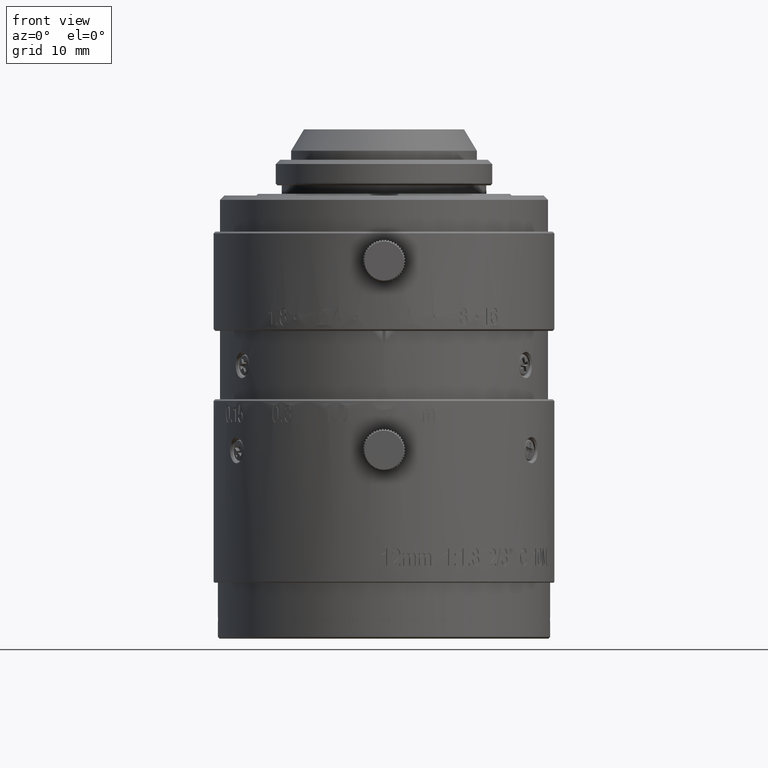
[diagram: clean part render]
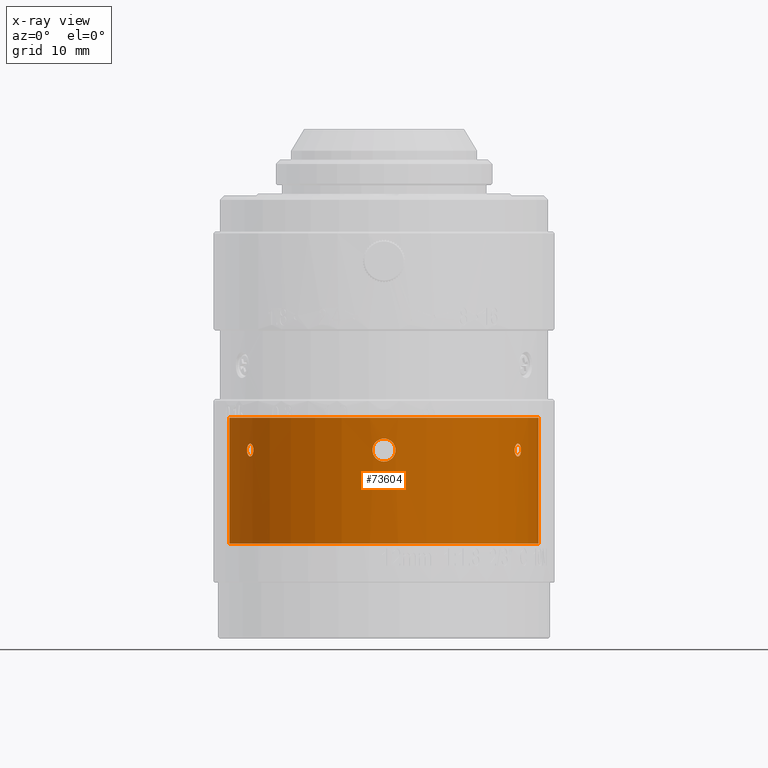
[diagram: x-ray — body ghosted, one internal face saturated and labeled with its STEP entity id]
A machine part, front view, then the same camera in x-ray: the body is ghosted and one INTERNAL B-rep face — a face not visible from any outside direction — is saturated and labeled: STEP entity #73604.
In plain terms, the highlighted cylindrical surface (partial cylindrical patch) has radius 18.15 mm, axis along (0, 0, -1).
Its self-contained STEP definition (entity closure, byte-faithful):
#185 = CARTESIAN_POINT ( 'NONE',  ( -16.07993552994999931, -8.417729702983999474, 21.50000000000000000 ) ) ;
#941 = CARTESIAN_POINT ( 'NONE',  ( 16.07546107106943367, -8.426768878587090228, 21.34322895665319919 ) ) ;
#1050 = EDGE_CURVE ( 'NONE', #11276, #30883, #27365, .T. ) ;
#1358 = CARTESIAN_POINT ( 'NONE',  ( 15.49684218341546860, -9.448263345174392924, 20.88582774878867454 ) ) ;
#1452 = EDGE_CURVE ( 'NONE', #40327, #26811, #4677, .T. ) ;
#1692 = CARTESIAN_POINT ( 'NONE',  ( 16.04452536865095880, -8.485636915649784839, 21.84463499550212973 ) ) ;
#2261 = CARTESIAN_POINT ( 'NONE',  ( -16.07993552994999931, -8.417729702983999474, 21.50000000000000000 ) ) ;
#2565 = CARTESIAN_POINT ( 'NONE',  ( 15.33552610649948278, -9.708400415507561831, 21.34242650353464654 ) ) ;
#2636 = B_SPLINE_CURVE_WITH_KNOTS ( 'NONE', 3,
 ( #33633, #72667, #9546, #20785, #34854, #40263, #72241, #15338, #58571, #8726, #9137, #58971, #46103, #40681, #33241, #27410, #1692, #2905, #52730, #34042 ),
 .UNSPECIFIED., .F., .F.,
 ( 4, 2, 2, 2, 2, 2, 2, 2, 2, 4 ),
 ( 0.000000000000000000, 0.1250000000000019151, 0.2500000000000038303, 0.3750000000000057732, 0.5000000000000065503, 0.6250000000000074385, 0.6875000000000062172, 0.7500000000000048850, 0.8750000000000025535, 1.000000000000000000 ),
 .UNSPECIFIED. ) ;
#2847 = CARTESIAN_POINT ( 'NONE',  ( -1.350033151885859484, -18.09972128210655740, 21.32110436927158403 ) ) ;
#2905 = CARTESIAN_POINT ( 'NONE',  ( 16.07548529208680321, -8.426755626285210354, 21.65753705151938746 ) ) ;
#3006 = CARTESIAN_POINT ( 'NONE',  ( -0.0001679660669294999714, -18.14999877328999744, 20.15000418049000075 ) ) ;
#3533 = AXIS2_PLACEMENT_3D ( 'NONE', #41690, #67850, #28811 ) ;
#3636 = CARTESIAN_POINT ( 'NONE',  ( -15.49192312625401513, -9.456770650410241785, 20.88276933573381200 ) ) ;
#3951 = DIRECTION ( 'NONE',  ( 0.000000000000000000, 0.000000000000000000, 1.000000000000000000 ) ) ;
#4201 = ORIENTED_EDGE ( 'NONE', *, *, #8140, .T. ) ;
#4677 = CIRCLE ( 'NONE', #55040, 18.14999999999999858 ) ;
#5348 = CARTESIAN_POINT ( 'NONE',  ( -15.75676336138097078, -9.008446410541139926, 22.24952519338572188 ) ) ;
#5749 = CARTESIAN_POINT ( 'NONE',  ( -15.40132685778221067, -9.603632262560122257, 21.94587936257468996 ) ) ;
#6645 = ORIENTED_EDGE ( 'NONE', *, *, #1452, .T. ) ;
#7793 = ORIENTED_EDGE ( 'NONE', *, *, #72916, .F. ) ;
#7979 = CARTESIAN_POINT ( 'NONE',  ( 15.40139457868785300, -9.603523261377478804, 21.05391078501916269 ) ) ;
#8140 = EDGE_CURVE ( 'NONE', #14824, #78813, #18174, .T. ) ;
#8726 = CARTESIAN_POINT ( 'NONE',  ( 15.75201268017929479, -9.016750080168094428, 22.25044430014061803 ) ) ;
#9077 = CARTESIAN_POINT ( 'NONE',  ( -0.6815869709322600611, -18.13795115647463163, 20.32107369288214116 ) ) ;
#9137 = CARTESIAN_POINT ( 'NONE',  ( 15.79434426338546871, -8.942179378865768413, 22.24071854086744437 ) ) ;
#9452 = CARTESIAN_POINT ( 'NONE',  ( -15.54313637960086147, -9.371935875028675866, 20.82685281712102920 ) ) ;
#9546 = CARTESIAN_POINT ( 'NONE',  ( 15.33552030368315755, -9.708383446122802241, 21.65680238853092732 ) ) ;
#10431 = CARTESIAN_POINT ( 'NONE',  ( 15.32993552994999931, -9.716767808661000316, 21.50000000000000000 ) ) ;
#11219 = CARTESIAN_POINT ( 'NONE',  ( 16.07993394641999885, -8.417736048711001118, 21.50000000956999813 ) ) ;
#11276 = VERTEX_POINT ( 'NONE', #43349 ) ;
#11962 = CARTESIAN_POINT ( 'NONE',  ( -15.47276343133398235, -9.487786181109877148, 22.07954346143578306 ) ) ;
#12154 = CARTESIAN_POINT ( 'NONE',  ( -15.32994023375000125, -9.716763264418000645, 21.50000000956999813 ) ) ;
#12943 = ORIENTED_EDGE ( 'NONE', *, *, #1050, .T. ) ;
#13793 = CARTESIAN_POINT ( 'NONE',  ( 15.79844179987972197, -8.934924650174158600, 20.76111068628036804 ) ) ;
#14824 = VERTEX_POINT ( 'NONE', #50830 ) ;
#15338 = CARTESIAN_POINT ( 'NONE',  ( 15.63764707511896823, -9.213449232464116179, 22.23914147258656726 ) ) ;
#15418 = CARTESIAN_POINT ( 'NONE',  ( -16.04512367667176775, -8.484469348152662960, 21.84169934391808710 ) ) ;
#16348 = FACE_BOUND ( 'NONE', #20112, .T. ) ;
#17019 = LINE ( 'NONE', #27850, #47640 ) ;
#17163 = FACE_OUTER_BOUND ( 'NONE', #27797, .T. ) ;
#17498 = CARTESIAN_POINT ( 'NONE',  ( 0.8282817536625699528, -18.13153381477859227, 22.58099969242854854 ) ) ;
#18174 = CIRCLE ( 'NONE', #48544, 18.14999999999999858 ) ;
#20112 = EDGE_LOOP ( 'NONE', ( #60265, #75806 ) ) ;
#20359 = B_SPLINE_CURVE_WITH_KNOTS ( 'NONE', 3,
 ( #39533, #77316, #941, #26249, #76918, #45358, #70693, #13793, #20432, #39124, #64878, #64473, #32906, #1358, #26666, #7979, #54434, #2565, #35329, #10431 ),
 .UNSPECIFIED., .F., .F.,
 ( 4, 2, 2, 2, 2, 2, 2, 2, 2, 4 ),
 ( 0.000000000000000000, 0.1249999999999988898, 0.2499999999999977796, 0.3749999999999966693, 0.4999999999999955591, 0.6249999999999944489, 0.6874999999999944489, 0.7499999999999944489, 0.8749999999999972244, 1.000000000000000000 ),
 .UNSPECIFIED. ) ;
#20432 = CARTESIAN_POINT ( 'NONE',  ( 15.75764150059447211, -9.006913141079028406, 20.75063292850706631 ) ) ;
#20785 = CARTESIAN_POINT ( 'NONE',  ( 15.37032783142243453, -9.653250036858119998, 21.84169934374101629 ) ) ;
#21162 = EDGE_CURVE ( 'NONE', #40327, #78813, #67072, .T. ) ;
#21289 = CARTESIAN_POINT ( 'NONE',  ( 0.000000000000000000, 0.000000000000000000, 10.50000000000000000 ) ) ;
#21485 = CARTESIAN_POINT ( 'NONE',  ( -15.39972983293267994, -9.606168127322217032, 21.05907901222671796 ) ) ;
#21498 = CARTESIAN_POINT ( 'NONE',  ( 15.32993552994999931, -9.716767808661000316, 21.50000000000000000 ) ) ;
#21918 = CARTESIAN_POINT ( 'NONE',  ( -1.081235073472156971, -18.11821020954863215, 22.32797450440416043 ) ) ;
#22496 = CARTESIAN_POINT ( 'NONE',  ( 1.315662486747798843, -18.10238221541788306, 21.14859728901706859 ) ) ;
#22710 = CARTESIAN_POINT ( 'NONE',  ( -15.63709262797349808, -9.214389613665293410, 20.76111068624337719 ) ) ;
#22743 = CARTESIAN_POINT ( 'NONE',  ( -1.315768007217758662, -18.10237458692740375, 21.14895404654836497 ) ) ;
#22895 = EDGE_CURVE ( 'NONE', #26811, #14824, #17019, .T. ) ;
#23100 = CARTESIAN_POINT ( 'NONE',  ( -16.07993552995102604, -8.417729702982224893, 21.42858785493296381 ) ) ;
#23173 = CARTESIAN_POINT ( 'NONE',  ( -15.32993709054182041, -9.716768708614251793, 21.57140889202615952 ) ) ;
#23742 = DIRECTION ( 'NONE',  ( 0.000000000000000000, 0.000000000000000000, 1.000000000000000000 ) ) ;
#23999 = CARTESIAN_POINT ( 'NONE',  ( -15.64132663898977071, -9.207213678771360321, 22.24071854086779254 ) ) ;
#24126 = CARTESIAN_POINT ( 'NONE',  ( 1.349916277869258607, -18.09972999935995475, 21.32133131164567885 ) ) ;
#26249 = CARTESIAN_POINT ( 'NONE',  ( 16.04517945403074819, -8.484360507885391200, 21.15858222375180020 ) ) ;
#26666 = CARTESIAN_POINT ( 'NONE',  ( 15.47292768126146001, -9.487518910140199324, 20.92019052932448275 ) ) ;
#26811 = VERTEX_POINT ( 'NONE', #70808 ) ;
#27365 = B_SPLINE_CURVE_WITH_KNOTS ( 'NONE', 3,
 ( #80040, #78410, #48486, #46849, #72188, #21918, #67201, #65970, #79644, #2847, #22743, #41855, #47260, #72606, #9077, #50540, #43067, #68410 ),
 .UNSPECIFIED., .F., .F.,
 ( 4, 2, 2, 2, 2, 2, 2, 2, 4 ),
 ( 0.000000000000000000, 0.1250000000000000278, 0.2500000000000000000, 0.3749999999999999445, 0.4999999999999999445, 0.6249999999999998890, 0.7499999999999998890, 0.8750000000000000000, 1.000000000000000000 ),
 .UNSPECIFIED. ) ;
#27410 = CARTESIAN_POINT ( 'NONE',  ( 16.01765293690055003, -8.536124179495841346, 21.94587936251943106 ) ) ;
#27797 = EDGE_LOOP ( 'NONE', ( #76166, #4201, #33825, #6645 ) ) ;
#27850 = CARTESIAN_POINT ( 'NONE',  ( -18.14999999999999858, 0.000000000000000000, 10.50000000000000000 ) ) ;
#28320 = CARTESIAN_POINT ( 'NONE',  ( 0.1786886605782281590, -18.15000165442092950, 20.14998192720859294 ) ) ;
#28462 = EDGE_CURVE ( 'NONE', #51237, #76163, #2636, .T. ) ;
#28811 = DIRECTION ( 'NONE',  ( -1.000000000000000000, 0.000000000000000000, 0.000000000000000000 ) ) ;
#29140 = CARTESIAN_POINT ( 'NONE',  ( 1.080995884949722541, -18.11822416197846408, 20.67170561437750109 ) ) ;
#29216 = B_SPLINE_CURVE_WITH_KNOTS ( 'NONE', 3,
 ( #3006, #28320, #67370, #81032, #36182, #29140, #48247, #22496, #24126, #29559, #55695, #49469, #74806, #17498, #49069, #54471, #42825, #61515 ),
 .UNSPECIFIED., .F., .F.,
 ( 4, 2, 2, 2, 2, 2, 2, 2, 4 ),
 ( 0.000000000000000000, 0.1250000000000000000, 0.2500000000000000000, 0.3750000000000000000, 0.5000000000000000000, 0.6250000000000000000, 0.7500000000000000000, 0.8750000000000000000, 1.000000000000000000 ),
 .UNSPECIFIED. ) ;
#29559 = CARTESIAN_POINT ( 'NONE',  ( 1.350082991285791012, -18.09971756474746840, 21.67851398656761575 ) ) ;
#30883 = VERTEX_POINT ( 'NONE', #43268 ) ;
#30902 = CARTESIAN_POINT ( 'NONE',  ( -16.01759239948228952, -8.536237328246414791, 21.05391078491549806 ) ) ;
#32906 = CARTESIAN_POINT ( 'NONE',  ( 15.54603507385754746, -9.366886646483493450, 20.82866300851624075 ) ) ;
#32947 = DIRECTION ( 'NONE',  ( 0.000000000000000000, 0.000000000000000000, -1.000000000000000000 ) ) ;
#33241 = CARTESIAN_POINT ( 'NONE',  ( 15.95304557417626512, -8.655913107740186518, 22.07954346145520574 ) ) ;
#33557 = EDGE_CURVE ( 'NONE', #44479, #76084, #36648, .T. ) ;
#33633 = CARTESIAN_POINT ( 'NONE',  ( 15.32993552994999931, -9.716767808661000316, 21.50000000000000000 ) ) ;
#33825 = ORIENTED_EDGE ( 'NONE', *, *, #21162, .F. ) ;
#34042 = CARTESIAN_POINT ( 'NONE',  ( 16.07993394641999885, -8.417736048711001118, 21.50000000956999813 ) ) ;
#34354 = CARTESIAN_POINT ( 'NONE',  ( -15.32994023375000125, -9.716763264418000645, 21.50000000956999813 ) ) ;
#34532 = CARTESIAN_POINT ( 'NONE',  ( -16.01881651909211968, -8.533913264370889706, 21.94161866776416758 ) ) ;
#34759 = CARTESIAN_POINT ( 'NONE',  ( -15.67903634015507741, -9.143061272689939400, 20.75063292850875740 ) ) ;
#34854 = CARTESIAN_POINT ( 'NONE',  ( 15.39999394005787892, -9.605745412115330950, 21.94161866752021695 ) ) ;
#35329 = CARTESIAN_POINT ( 'NONE',  ( 15.32993552995117170, -9.716767808658968164, 21.42858785506550134 ) ) ;
#35495 = CARTESIAN_POINT ( 'NONE',  ( 18.14999999999999858, 0.000000000000000000, 10.50000000000000000 ) ) ;
#36063 = CARTESIAN_POINT ( 'NONE',  ( -15.32994023375000125, -9.716763264418000645, 21.50000000956999813 ) ) ;
#36182 = CARTESIAN_POINT ( 'NONE',  ( 0.8275841051198771225, -18.13156649150677779, 20.41849859399250633 ) ) ;
#36458 = CARTESIAN_POINT ( 'NONE',  ( -16.07546684584553631, -8.426758440212944734, 21.65680238872743857 ) ) ;
#36648 = B_SPLINE_CURVE_WITH_KNOTS ( 'NONE', 3,
 ( #54753, #73869, #36458, #15418, #34532, #40761, #80901, #75091, #5348, #68043, #23999, #49738, #49352, #43514, #11962, #5749, #66114, #80078, #23173, #36063 ),
 .UNSPECIFIED., .F., .F.,
 ( 4, 2, 2, 2, 2, 2, 2, 2, 2, 4 ),
 ( 0.000000000000000000, 0.1249999999999985012, 0.2499999999999970024, 0.3749999999999955036, 0.4999999999999940048, 0.6249999999999924505, 0.6874999999999928946, 0.7499999999999932276, 0.8749999999999965583, 1.000000000000000000 ),
 .UNSPECIFIED. ) ;
#36865 = CARTESIAN_POINT ( 'NONE',  ( 18.14999999999999858, 0.000000000000000000, 25.30000000000000071 ) ) ;
#37946 = CARTESIAN_POINT ( 'NONE',  ( -15.93085717025984493, -8.696527336715723422, 20.88582774876368120 ) ) ;
#38726 = EDGE_CURVE ( 'NONE', #76084, #44479, #54428, .T. ) ;
#39124 = CARTESIAN_POINT ( 'NONE',  ( 15.68536926138801313, -9.132190316105038619, 20.74941983281698299 ) ) ;
#39533 = CARTESIAN_POINT ( 'NONE',  ( 16.07993394641999885, -8.417736048711001118, 21.50000000956999813 ) ) ;
#40263 = CARTESIAN_POINT ( 'NONE',  ( 15.49228288546783361, -9.456181594764629494, 22.11772542477116588 ) ) ;
#40327 = VERTEX_POINT ( 'NONE', #42356 ) ;
#40681 = CARTESIAN_POINT ( 'NONE',  ( 15.93104597633012531, -8.696180862620407126, 22.11388616888245906 ) ) ;
#40761 = CARTESIAN_POINT ( 'NONE',  ( -15.93543492672881356, -8.688619743823437602, 22.11772542451716816 ) ) ;
#41690 = CARTESIAN_POINT ( 'NONE',  ( 0.000000000000000000, 0.000000000000000000, 0.000000000000000000 ) ) ;
#41855 = CARTESIAN_POINT ( 'NONE',  ( -1.178817135220981749, -18.11180833864919038, 20.81815754549083408 ) ) ;
#42104 = FACE_BOUND ( 'NONE', #47298, .T. ) ;
#42356 = CARTESIAN_POINT ( 'NONE',  ( 18.14999999999999858, 0.000000000000000000, 10.50000000000000000 ) ) ;
#42507 = FACE_BOUND ( 'NONE', #80824, .T. ) ;
#42825 = CARTESIAN_POINT ( 'NONE',  ( 0.1789448399248964316, -18.15000000000000213, 22.85000000000000142 ) ) ;
#42985 = ORIENTED_EDGE ( 'NONE', *, *, #28462, .F. ) ;
#43067 = CARTESIAN_POINT ( 'NONE',  ( -0.1789936739875666316, -18.14999834431079151, 20.15002642992526560 ) ) ;
#43268 = CARTESIAN_POINT ( 'NONE',  ( -0.0001679660669294999714, -18.14999877328999744, 20.15000418049000075 ) ) ;
#43349 = CARTESIAN_POINT ( 'NONE',  ( 0.000000000000000000, -18.14999999999999858, 22.84999999999999787 ) ) ;
#43514 = CARTESIAN_POINT ( 'NONE',  ( -15.49663653110135009, -9.448600093044678516, 22.11388616888342185 ) ) ;
#44479 = VERTEX_POINT ( 'NONE', #2261 ) ;
#45358 = CARTESIAN_POINT ( 'NONE',  ( 15.93576518419038202, -8.688013655536316548, 20.88276933581576600 ) ) ;
#46103 = CARTESIAN_POINT ( 'NONE',  ( 15.88525660127246297, -8.779316380348102911, 22.17104083781240931 ) ) ;
#46818 = CARTESIAN_POINT ( 'NONE',  ( -15.79385217516858475, -8.943049096962369049, 20.75905030093658965 ) ) ;
#46849 = CARTESIAN_POINT ( 'NONE',  ( -0.6818270816103125798, -18.13794440016698672, 22.67883345322650257 ) ) ;
#47260 = CARTESIAN_POINT ( 'NONE',  ( -1.081270076188577622, -18.11820724401194482, 20.67210248049750732 ) ) ;
#47298 = EDGE_LOOP ( 'NONE', ( #62657, #12943 ) ) ;
#47640 = VECTOR ( 'NONE', #53171, 1000.000000000000000 ) ;
#48057 = CARTESIAN_POINT ( 'NONE',  ( -15.75139343661576952, -9.017833090085996872, 20.74941983281560098 ) ) ;
#48247 = CARTESIAN_POINT ( 'NONE',  ( 1.178733109702075454, -18.11181376638478113, 20.81808896332373493 ) ) ;
#48486 = CARTESIAN_POINT ( 'NONE',  ( -0.3508101816919644289, -18.14736475219438461, 22.81584139150330870 ) ) ;
#48544 = AXIS2_PLACEMENT_3D ( 'NONE', #60734, #23742, #54903 ) ;
#49069 = CARTESIAN_POINT ( 'NONE',  ( 0.6819183420694181486, -18.13793987137875519, 22.67874925152675303 ) ) ;
#49352 = CARTESIAN_POINT ( 'NONE',  ( -15.54573931388028107, -9.367377572159520938, 22.17104083781188706 ) ) ;
#49469 = CARTESIAN_POINT ( 'NONE',  ( 1.179015967214857019, -18.11179520565629275, 22.18150147289101426 ) ) ;
#49738 = CARTESIAN_POINT ( 'NONE',  ( -15.57031991577884611, -9.326393749473796291, 22.19266578313484928 ) ) ;
#49992 = CARTESIAN_POINT ( 'NONE',  ( -15.88497932713190153, -8.779817978883748708, 20.82866300849041963 ) ) ;
#50407 = CARTESIAN_POINT ( 'NONE',  ( -16.07548444317167835, -8.426754980906638437, 21.34242650333686342 ) ) ;
#50540 = CARTESIAN_POINT ( 'NONE',  ( -0.3510671760211419579, -18.14735751539393505, 20.18424478229075092 ) ) ;
#50830 = CARTESIAN_POINT ( 'NONE',  ( -18.14999999999999858, 0.000000000000000000, 25.30000000000000071 ) ) ;
#51237 = VERTEX_POINT ( 'NONE', #21498 ) ;
#52730 = CARTESIAN_POINT ( 'NONE',  ( 16.07993708962832713, -8.417730604514474635, 21.57140889195385824 ) ) ;
#53171 = DIRECTION ( 'NONE',  ( 0.000000000000000000, 0.000000000000000000, 1.000000000000000000 ) ) ;
#54428 = B_SPLINE_CURVE_WITH_KNOTS ( 'NONE', 3,
 ( #34354, #65936, #66348, #59290, #21485, #3636, #9452, #22710, #34759, #48057, #46818, #79189, #49992, #37946, #63272, #30902, #75335, #50407, #23100, #185 ),
 .UNSPECIFIED., .F., .F.,
 ( 4, 2, 2, 2, 2, 2, 2, 2, 2, 4 ),
 ( 0.000000000000000000, 0.1249999999999998335, 0.2499999999999996669, 0.3749999999999995004, 0.4999999999999993339, 0.6249999999999991118, 0.6875000000000001110, 0.7500000000000009992, 0.8750000000000004441, 1.000000000000000000 ),
 .UNSPECIFIED. ) ;
#54434 = CARTESIAN_POINT ( 'NONE',  ( 15.37107272788006718, -9.652094939134476803, 21.15522596038153580 ) ) ;
#54471 = CARTESIAN_POINT ( 'NONE',  ( 0.3511420955507738584, -18.14735723546913704, 22.81574985030535174 ) ) ;
#54753 = CARTESIAN_POINT ( 'NONE',  ( -16.07993552994999931, -8.417729702983999474, 21.50000000000000000 ) ) ;
#54903 = DIRECTION ( 'NONE',  ( -1.000000000000000000, 0.000000000000000000, 0.000000000000000000 ) ) ;
#55040 = AXIS2_PLACEMENT_3D ( 'NONE', #21289, #32947, #64105 ) ;
#55695 = CARTESIAN_POINT ( 'NONE',  ( 1.315866265180736017, -18.10236725389088974, 21.85067652313148301 ) ) ;
#58571 = CARTESIAN_POINT ( 'NONE',  ( 15.67992512086831702, -9.141534147080587758, 22.24952519338747337 ) ) ;
#58971 = CARTESIAN_POINT ( 'NONE',  ( 15.86205387063160188, -8.821095717375849077, 22.19266578313530758 ) ) ;
#59290 = CARTESIAN_POINT ( 'NONE',  ( -15.37026146165307061, -9.653352761627690626, 21.15858222398687971 ) ) ;
#60214 = EDGE_CURVE ( 'NONE', #30883, #11276, #29216, .T. ) ;
#60265 = ORIENTED_EDGE ( 'NONE', *, *, #33557, .F. ) ;
#60734 = CARTESIAN_POINT ( 'NONE',  ( 0.000000000000000000, 0.000000000000000000, 25.30000000000000071 ) ) ;
#61515 = CARTESIAN_POINT ( 'NONE',  ( 0.000000000000000000, -18.14999999999999858, 22.84999999999999787 ) ) ;
#62657 = ORIENTED_EDGE ( 'NONE', *, *, #60214, .T. ) ;
#63272 = CARTESIAN_POINT ( 'NONE',  ( -15.95289623571357396, -8.656188987790693901, 20.92019052935695456 ) ) ;
#64105 = DIRECTION ( 'NONE',  ( 1.000000000000000000, 0.000000000000000000, 0.000000000000000000 ) ) ;
#64473 = CARTESIAN_POINT ( 'NONE',  ( 15.57066584806577403, -9.325815764313254874, 20.80704413401958064 ) ) ;
#64878 = CARTESIAN_POINT ( 'NONE',  ( 15.64183379281529973, -9.206352658876868489, 20.75905030094866532 ) ) ;
#65936 = CARTESIAN_POINT ( 'NONE',  ( -15.32993708963070389, -9.716768710192365432, 21.42860124150361756 ) ) ;
#65970 = CARTESIAN_POINT ( 'NONE',  ( -1.315769602698410479, -18.10237418519385599, 21.85100370659533198 ) ) ;
#66114 = CARTESIAN_POINT ( 'NONE',  ( -15.37103982059817220, -9.652148103043577620, 21.84463499560248678 ) ) ;
#66348 = CARTESIAN_POINT ( 'NONE',  ( -15.33552645618849475, -9.708373225844422194, 21.34322895690750954 ) ) ;
#67072 = LINE ( 'NONE', #35495, #75344 ) ;
#67201 = CARTESIAN_POINT ( 'NONE',  ( -1.178969231861707989, -18.11179815309571950, 22.18151190571347087 ) ) ;
#67370 = CARTESIAN_POINT ( 'NONE',  ( 0.3507453230751290119, -18.14736513760477266, 20.18414427418032986 ) ) ;
#67850 = DIRECTION ( 'NONE',  ( 0.000000000000000000, 0.000000000000000000, -1.000000000000000000 ) ) ;
#68043 = CARTESIAN_POINT ( 'NONE',  ( -15.68474096909475790, -9.133268101675849238, 22.25044430014217411 ) ) ;
#68410 = CARTESIAN_POINT ( 'NONE',  ( -0.0001679660669294999714, -18.14999877328999744, 20.15000418049000075 ) ) ;
#70693 = CARTESIAN_POINT ( 'NONE',  ( 15.88790274029915395, -8.774783021568630659, 20.82685281720150883 ) ) ;
#70808 = CARTESIAN_POINT ( 'NONE',  ( -18.14999999999999858, 0.000000000000000000, 10.50000000000000000 ) ) ;
#72188 = CARTESIAN_POINT ( 'NONE',  ( -0.8277321982953577129, -18.13156005117606284, 22.58143417288584232 ) ) ;
#72241 = CARTESIAN_POINT ( 'NONE',  ( 15.54354735421628320, -9.371255155239817114, 22.17356982468335502 ) ) ;
#72606 = CARTESIAN_POINT ( 'NONE',  ( -0.8280173723851401713, -18.13154615430400796, 20.41880899718577780 ) ) ;
#72667 = CARTESIAN_POINT ( 'NONE',  ( 15.32993552995117348, -9.716767808658968164, 21.57136907112650803 ) ) ;
#72847 = CYLINDRICAL_SURFACE ( 'NONE', #3533, 18.14999999999999858 ) ;
#72916 = EDGE_CURVE ( 'NONE', #76163, #51237, #20359, .T. ) ;
#73604 = ADVANCED_FACE ( 'NONE', ( #17163, #42104, #16348, #42507 ), #72847, .F. ) ;
#73869 = CARTESIAN_POINT ( 'NONE',  ( -16.07993552995102604, -8.417729702982224893, 21.57136907125972414 ) ) ;
#74806 = CARTESIAN_POINT ( 'NONE',  ( 1.081458874749659627, -18.11819571155293573, 22.32763549644475276 ) ) ;
#75091 = CARTESIAN_POINT ( 'NONE',  ( -15.79790462961659614, -8.935875005769826629, 22.23914147247093354 ) ) ;
#75335 = CARTESIAN_POINT ( 'NONE',  ( -16.04449578092393836, -8.485691996273025950, 21.15522596019600599 ) ) ;
#75344 = VECTOR ( 'NONE', #3951, 1000.000000000000000 ) ;
#75806 = ORIENTED_EDGE ( 'NONE', *, *, #38726, .F. ) ;
#76084 = VERTEX_POINT ( 'NONE', #12154 ) ;
#76163 = VERTEX_POINT ( 'NONE', #11219 ) ;
#76166 = ORIENTED_EDGE ( 'NONE', *, *, #22895, .T. ) ;
#76918 = CARTESIAN_POINT ( 'NONE',  ( 16.01905054770631764, -8.533473183152946007, 21.05907901213007349 ) ) ;
#77316 = CARTESIAN_POINT ( 'NONE',  ( 16.07993709053944542, -8.417730602936376982, 21.42860124133240873 ) ) ;
#78410 = CARTESIAN_POINT ( 'NONE',  ( -0.1788338654136740202, -18.14999999999999858, 22.85000000000000142 ) ) ;
#78813 = VERTEX_POINT ( 'NONE', #36865 ) ;
#79189 = CARTESIAN_POINT ( 'NONE',  ( -15.86172628691854136, -8.821684296152623617, 20.80704413399644537 ) ) ;
#79644 = CARTESIAN_POINT ( 'NONE',  ( -1.349966047961391080, -18.09972628717029863, 21.67828262010511153 ) ) ;
#80040 = CARTESIAN_POINT ( 'NONE',  ( 0.000000000000000000, -18.14999999999999858, 22.84999999999999787 ) ) ;
#80078 = CARTESIAN_POINT ( 'NONE',  ( -15.33552708990540481, -9.708400827945608214, 21.65753705162708087 ) ) ;
#80824 = EDGE_LOOP ( 'NONE', ( #42985, #7793 ) ) ;
#80901 = CARTESIAN_POINT ( 'NONE',  ( -15.88751870713339009, -8.775479295635584265, 22.17356982443680380 ) ) ;
#81032 = CARTESIAN_POINT ( 'NONE',  ( 0.6815720008742642833, -18.13795311844300429, 20.32101867484026769 ) ) ;